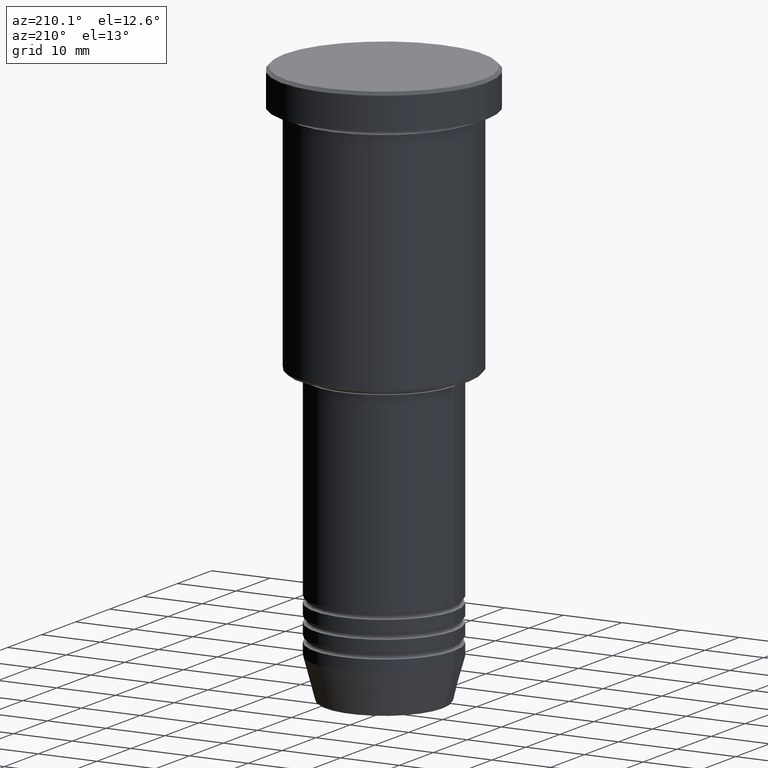
[diagram: clean part render]
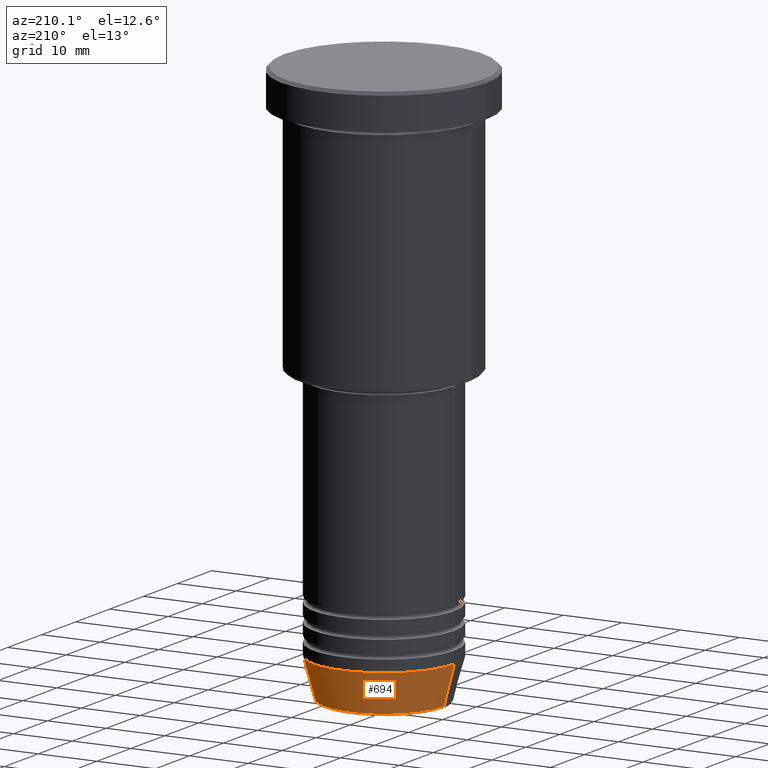
[diagram: same view with one face highlighted and labeled with its STEP entity id]
A machine part, auxiliary view. The second image highlights one B-rep face of the part: STEP entity #694.
In plain terms, the highlighted conical surface has half-angle 15 deg.
Its self-contained STEP definition (entity closure, byte-faithful):
#26 = VECTOR ( 'NONE', #647, 1000.000000000000000 ) ;
#35 = DIRECTION ( 'NONE',  ( 1.000000000000000000, 0.000000000000000000, 0.000000000000000000 ) ) ;
#76 = CIRCLE ( 'NONE', #650, 12.00000000000000000 ) ;
#97 = CARTESIAN_POINT ( 'NONE',  ( -12.00000000000000000, 1.469576158976823947E-15, -89.00000000000000000 ) ) ;
#147 = DIRECTION ( 'NONE',  ( -0.000000000000000000, -0.000000000000000000, 1.000000000000000000 ) ) ;
#159 = EDGE_LOOP ( 'NONE', ( #636, #431, #273, #866 ) ) ;
#220 = CONICAL_SURFACE ( 'NONE', #257, 12.00000000000000000, 0.2617993877991500740 ) ;
#224 = FACE_OUTER_BOUND ( 'NONE', #159, .T. ) ;
#257 = AXIS2_PLACEMENT_3D ( 'NONE', #677, #505, #1034 ) ;
#273 = ORIENTED_EDGE ( 'NONE', *, *, #317, .F. ) ;
#317 = EDGE_CURVE ( 'NONE', #386, #864, #76, .T. ) ;
#386 = VERTEX_POINT ( 'NONE', #609 ) ;
#419 = EDGE_CURVE ( 'NONE', #1024, #1133, #1030, .T. ) ;
#431 = ORIENTED_EDGE ( 'NONE', *, *, #981, .T. ) ;
#458 = CARTESIAN_POINT ( 'NONE',  ( 10.22365507213718949, 0.000000000000000000, -95.62940952255127058 ) ) ;
#492 = EDGE_CURVE ( 'NONE', #1024, #386, #799, .T. ) ;
#505 = DIRECTION ( 'NONE',  ( -0.000000000000000000, -0.000000000000000000, 1.000000000000000000 ) ) ;
#551 = LINE ( 'NONE', #97, #26 ) ;
#609 = CARTESIAN_POINT ( 'NONE',  ( 12.00000000000000000, 0.000000000000000000, -89.00000000000000000 ) ) ;
#615 = VECTOR ( 'NONE', #1163, 1000.000000000000000 ) ;
#636 = ORIENTED_EDGE ( 'NONE', *, *, #419, .T. ) ;
#647 = DIRECTION ( 'NONE',  ( -0.2588190451025213501, 3.169619151431772337E-17, 0.9659258262890680902 ) ) ;
#650 = AXIS2_PLACEMENT_3D ( 'NONE', #936, #147, #35 ) ;
#677 = CARTESIAN_POINT ( 'NONE',  ( 0.000000000000000000, 0.000000000000000000, -89.00000000000000000 ) ) ;
#694 = ADVANCED_FACE ( 'NONE', ( #224 ), #220, .T. ) ;
#709 = CARTESIAN_POINT ( 'NONE',  ( 0.000000000000000000, 0.000000000000000000, -95.62940952255127058 ) ) ;
#744 = AXIS2_PLACEMENT_3D ( 'NONE', #709, #971, #874 ) ;
#793 = CARTESIAN_POINT ( 'NONE',  ( -12.00000000000000000, 1.469576158976823947E-15, -89.00000000000000000 ) ) ;
#799 = LINE ( 'NONE', #987, #615 ) ;
#864 = VERTEX_POINT ( 'NONE', #793 ) ;
#866 = ORIENTED_EDGE ( 'NONE', *, *, #492, .F. ) ;
#874 = DIRECTION ( 'NONE',  ( 1.000000000000000000, 0.000000000000000000, 0.000000000000000000 ) ) ;
#936 = CARTESIAN_POINT ( 'NONE',  ( 0.000000000000000000, 0.000000000000000000, -89.00000000000000000 ) ) ;
#971 = DIRECTION ( 'NONE',  ( -0.000000000000000000, -0.000000000000000000, 1.000000000000000000 ) ) ;
#981 = EDGE_CURVE ( 'NONE', #1133, #864, #551, .T. ) ;
#987 = CARTESIAN_POINT ( 'NONE',  ( 12.00000000000000000, 0.000000000000000000, -89.00000000000000000 ) ) ;
#1024 = VERTEX_POINT ( 'NONE', #458 ) ;
#1030 = CIRCLE ( 'NONE', #744, 10.22365507213718949 ) ;
#1033 = CARTESIAN_POINT ( 'NONE',  ( -10.22365507213718949, 1.360806402472382547E-15, -95.62940952255127058 ) ) ;
#1034 = DIRECTION ( 'NONE',  ( 1.000000000000000000, 0.000000000000000000, 0.000000000000000000 ) ) ;
#1133 = VERTEX_POINT ( 'NONE', #1033 ) ;
#1163 = DIRECTION ( 'NONE',  ( 0.2588190451025213501, 0.000000000000000000, 0.9659258262890680902 ) ) ;